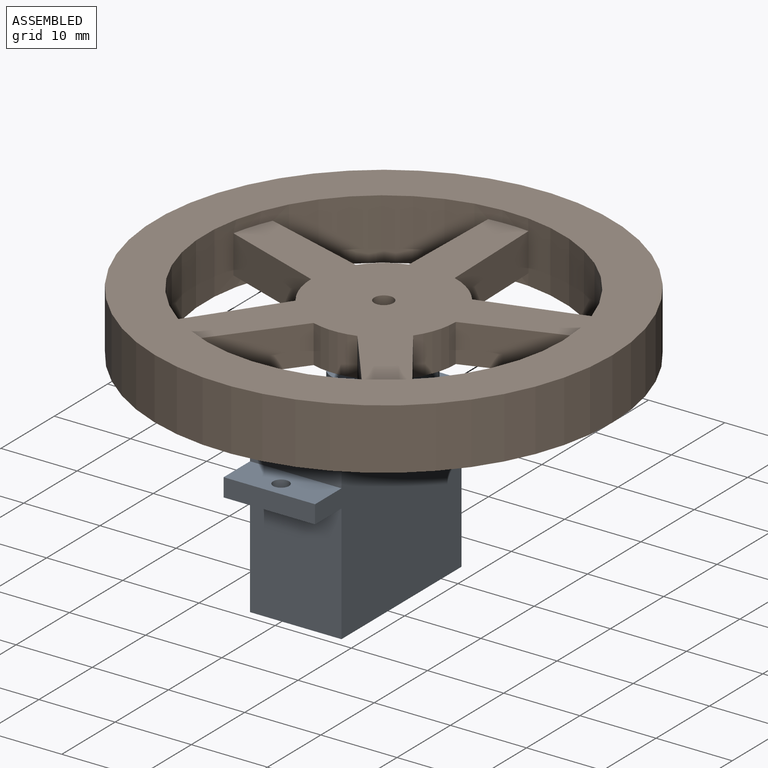
[diagram: assembled view]
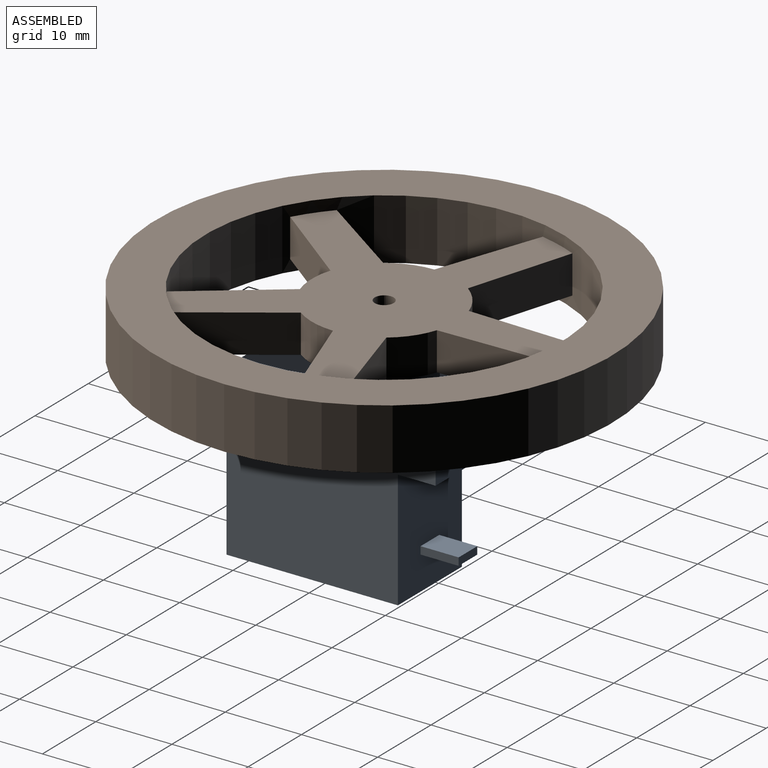
[diagram: assembled view, second angle]
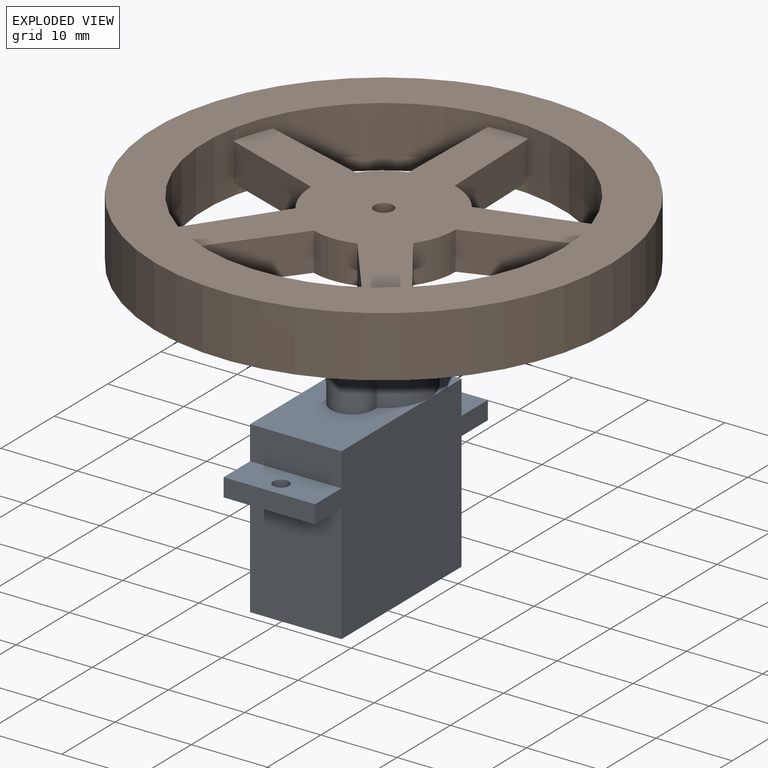
[diagram: exploded view]
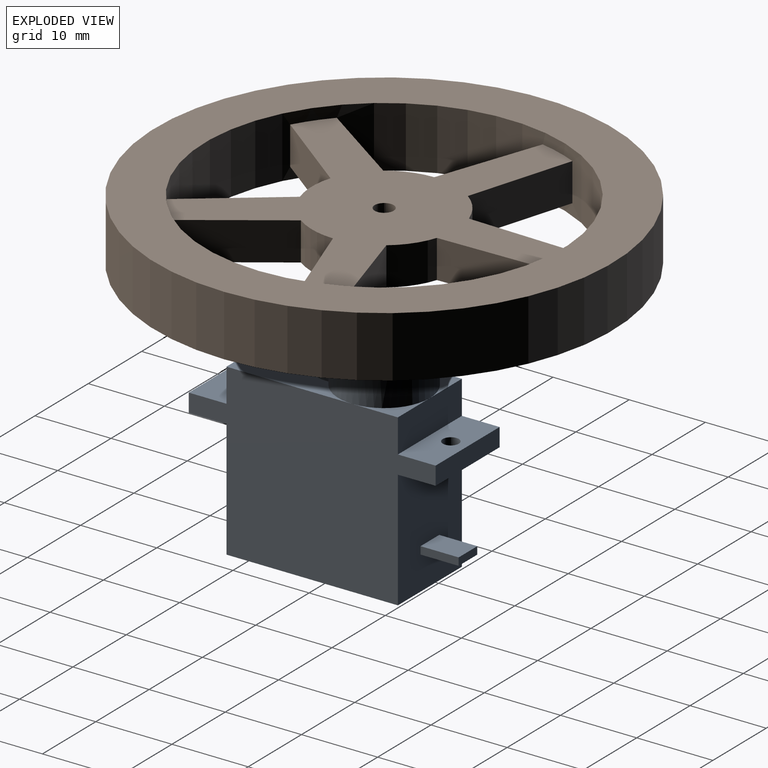
[diagram: exploded view, second angle]
ASSEMBLY  parts=2 mates=2
PART A: 30 faces, bbox 12x32.5x29.3 mm
  f0: plane 6x6mm, normal (0,0,1), area 7.7mm2, adj f6,f10,f21
  f1: plane 6x6mm, normal (0,0,1), area 7.7mm2, adj f4,f10,f21
  f2: plane 12x4.95mm, normal (0,0,-1), area 55.9mm2, adj f4,f6,f7,f14,f17
  f3: plane 12x4.95mm, normal (0,0,1), area 55.9mm2, adj f4,f6,f7,f10,f17
  f4: plane 32.4x22.3mm, normal (-1,0,0), area 525.5mm2, adj f1,f2,f3,f5,f7,f8,f9,f10
  f5: plane 12x2.4mm, normal (0,-1,0), area 28.8mm2, adj f4,f6,f8,f9
  f6: plane 32.4x22.3mm, normal (1,0,0), area 525.5mm2, adj f0,f2,f3,f5,f7,f8,f9,f10
  f7: plane 12x2.4mm, normal (0,1,0), area 28.8mm2, adj f2,f3,f4,f6
  f8: plane 12x4.95mm, normal (0,0,1), area 55.9mm2, adj f4,f5,f6,f11,f16
  f9: plane 12x4.95mm, normal (0,0,-1), area 55.9mm2, adj f4,f5,f6,f13,f16
  f10: plane 12x4.4mm, normal (0,1,0), area 52.8mm2, adj f0,f1,f3,f4,f6
  f11: plane 12x4.4mm, normal (0,-1,0), area 52.8mm2, adj f4,f6,f8,f12
  f12: plane 16.5x12mm, normal (0,0,1), area 128.4mm2, adj f4,f6,f11,f18,f19,f20,f21
  f13: plane 15.5x12mm, normal (0,-1,0), area 186mm2, adj f4,f6,f9,f15
  f14: plane 15.5x12mm, normal (0,1,0), area 182.5mm2, adj f2,f4,f6,f15,f25,f26,f27,f28
  f15: plane 22.5x12mm, normal (0,0,-1), area 270mm2, adj f4,f6,f13,f14
  f16: cylinder r=1.05mm len=2.4mm, axis (0,0,1), area 15.8mm2, adj f8,f9
  f17: cylinder r=1.05mm len=2.4mm, axis (0,0,1), area 15.8mm2, adj f2,f3
  f18: plane 4x0.59mm, normal (-1,0,0), area 2.4mm2, adj f12,f19,f21,f22
  f19: cylinder r=2.8mm len=5.6mm, axis (0,0,-1), area 35.2mm2, adj f12,f18,f20,f22
  f20: plane 4x0.59mm, normal (1,0,0), area 2.4mm2, adj f12,f19,f21,f22
  f21: cylinder r=6mm len=12mm, axis (0,0,-1), area 127.5mm2, adj f0,f1,f12,f18,f20,f22
  f22: plane 14.7x12mm, normal (0,0,1), area 108mm2, adj f18,f19,f20,f21,f23
  f23: cylinder r=2.4mm len=4.8mm, axis (0,0,-1), area 45.2mm2, adj f22,f24
  f24: plane 4.8x4.8mm, normal (0,0,1), area 18.1mm2, adj f23
  f25: plane 5x3.5mm, normal (0,0,1), area 17.5mm2, adj f14,f26,f28,f29
  f26: plane 5x1mm, normal (1,0,0), area 5mm2, adj f14,f25,f27,f29
  f27: plane 5x3.5mm, normal (0,0,-1), area 17.5mm2, adj f14,f26,f28,f29
  f28: plane 5x1mm, normal (-1,0,0), area 5mm2, adj f14,f25,f27,f29
  f29: plane 3.5x1mm, normal (0,1,0), area 3.5mm2, adj f25,f26,f27,f28
PART B: 26 faces, bbox 60x60x8 mm
  f0: cylinder r=23.5mm len=47mm, axis (0,0,-1), area 1048.5mm2, adj f2,f3,f4,f5,f7,f8,f10,f11
  f1: cylinder r=30mm len=60mm, axis (0,0,-1), area 1508mm2, adj f2,f3
  f2: plane 60x60mm, normal (0,0,1), area 1092.5mm2, adj f0,f1
  f3: plane 60x60mm, normal (0,0,-1), area 1092.5mm2, adj f0,f1
  f4: plane 11.39x8.71mm, normal (-0.79,-0.61,0), area 71.7mm2, adj f0,f18,f19,f20
  f5: plane 11.8x8.14mm, normal (0.82,0.57,0), area 71.7mm2, adj f0,f6,f19,f20
  f6: cylinder r=9.5mm len=5.46mm, axis (0,0,-1), area 29.2mm2, adj f5,f7,f19,f20
  f7: plane 13.53x5mm, normal (0.33,-0.94,0), area 71.7mm2, adj f0,f6,f19,f20
  f8: plane 13.74x5mm, normal (-0.29,0.96,0), area 71.7mm2, adj f0,f9,f19,f20
  f9: cylinder r=9.5mm len=5mm, axis (0,0,-1), area 29.2mm2, adj f8,f10,f19,f20
  f10: plane 14.34x5mm, normal (1,0.02,0), area 71.7mm2, adj f0,f9,f19,f20
  f11: plane 14.34x5mm, normal (-1,0.02,0), area 71.7mm2, adj f0,f12,f19,f20
  f12: cylinder r=9.5mm len=5mm, axis (0,0,-1), area 29.2mm2, adj f11,f13,f19,f20
  f13: plane 13.74x5mm, normal (0.29,0.96,0), area 71.7mm2, adj f0,f12,f19,f20
  f14: plane 13.53x5mm, normal (-0.33,-0.94,0), area 71.7mm2, adj f0,f15,f19,f20
  f15: cylinder r=9.5mm len=5.46mm, axis (0,0,-1), area 29.2mm2, adj f14,f16,f19,f20
  f16: plane 11.8x8.14mm, normal (-0.82,0.57,0), area 71.7mm2, adj f0,f15,f19,f20
  f17: plane 11.39x8.71mm, normal (0.79,-0.61,0), area 71.7mm2, adj f0,f18,f19,f20
  f18: cylinder r=9.5mm len=5.74mm, axis (0,0,-1), area 29.2mm2, adj f4,f17,f19,f20
  f19: plane 46.05x43.95mm, normal (0,0,1), area 676.5mm2, adj f0,f4,f5,f6,f7,f8,f9,f10
  f20: plane 46.05x43.95mm, normal (0,0,-1), area 642.9mm2, adj f0,f4,f5,f6,f7,f8,f9,f10
  f21: cylinder r=3.5mm len=7mm, axis (0,0,1), area 17.6mm2, adj f20,f22
  f22: plane 7x7mm, normal (0,0,-1), area 18.8mm2, adj f21,f23
  f23: cylinder r=2.5mm len=5mm, axis (0,0,-1), area 44mm2, adj f22,f24
  f24: plane 5x5mm, normal (0,0,-1), area 14.7mm2, adj f23,f25
  f25: cylinder r=1.25mm len=3mm, axis (0,0,-1), area 23.6mm2, adj f19,f24
PLACE A t=(9.53,13.87,34.13)mm
PLACE B t=(3.53,35.32,48.43)mm
MATE slider A.f21 <-> B.f23  axis (0,0,-1) through (3.53,35.32,46.43)mm
MATE planar A.f21 <-> B.f23  axis (0,0,1) through (3.53,35.32,47.93)mm
